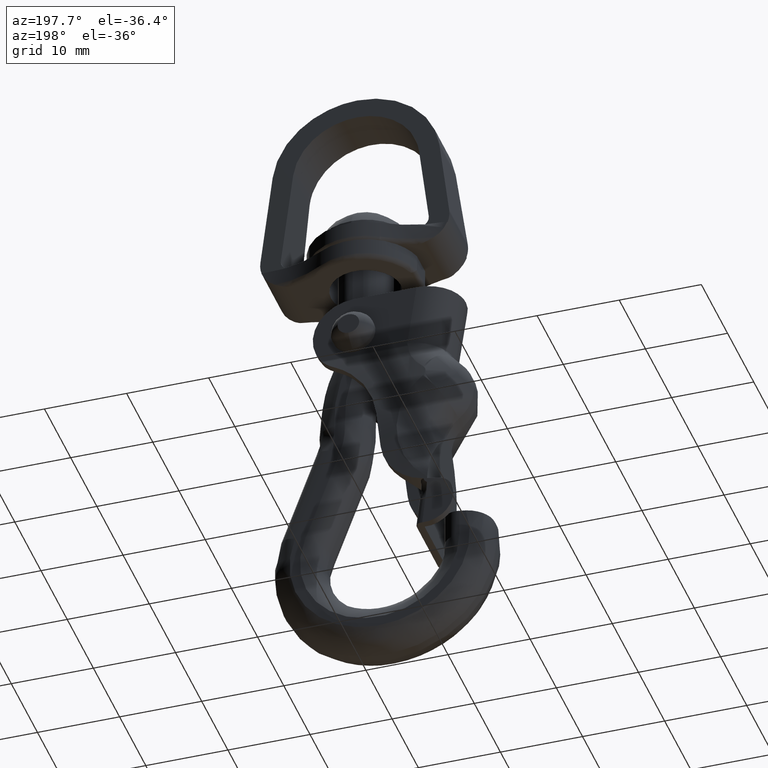
[diagram: clean part render]
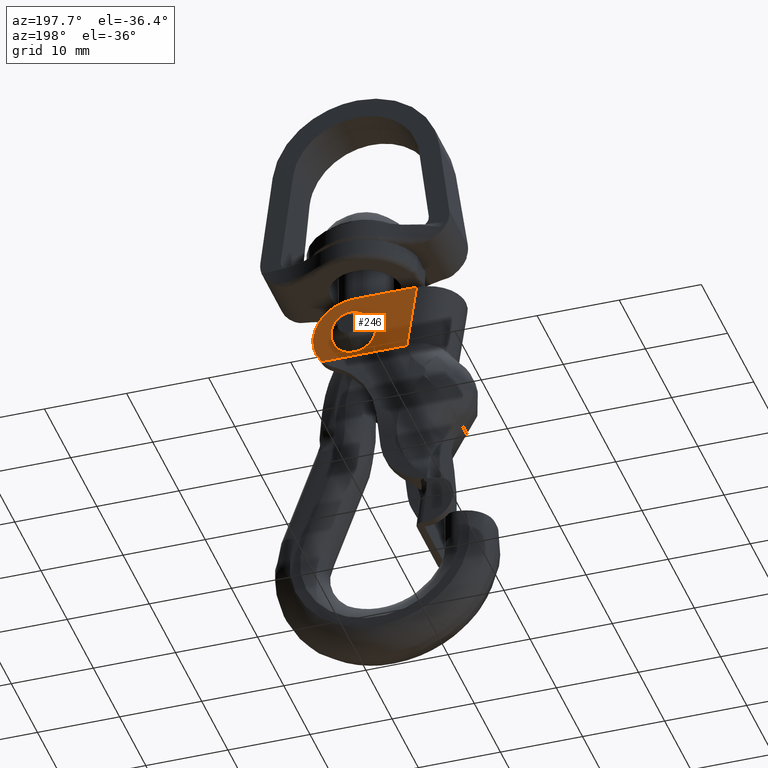
[diagram: same view with one face highlighted and labeled with its STEP entity id]
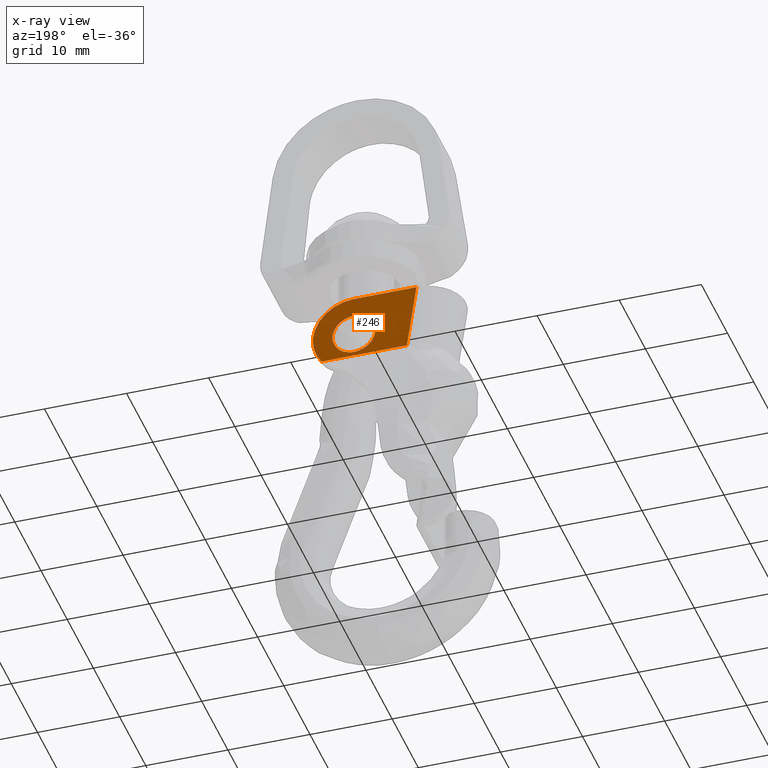
[diagram: x-ray of the same camera — body ghosted, the highlighted face saturated]
A machine part, auxiliary view. The second image highlights one B-rep face of the part: STEP entity #246.
The next image is the same camera in x-ray: the body ghosted, the highlighted face saturated — about 0% of this face is hidden behind the body in this view.
In plain terms, the highlighted planar face has unit normal (0, -1, -0).
Its self-contained STEP definition (entity closure, byte-faithful):
#246=ADVANCED_FACE('',(#1286,#1287),#1285,.F.);
#1285=PLANE('',#3165);
#1286=FACE_OUTER_BOUND('',#3166,.T.);
#1287=FACE_BOUND('',#3167,.T.);
#3162=CARTESIAN_POINT('',(-8.96663627536E+00,4.57698412698E+00,5.82882134567E+00));
#3163=DIRECTION('',(0.00000000000E+00,-1.00000000000E+00,-2.28647147580E-13));
#3164=DIRECTION('',(0.00000000000E+00,2.28647147580E-13,-1.00000000000E+00));
#3165=AXIS2_PLACEMENT_3D('',#3162,#3163,#3164);
#3166=EDGE_LOOP('',(#4503,#4504,#4505,#4506,#4507,#4508));
#3167=EDGE_LOOP('',(#4509,#4510));
#4503=ORIENTED_EDGE('',*,*,#5122,.T.);
#4504=ORIENTED_EDGE('',*,*,#5111,.T.);
#4505=ORIENTED_EDGE('',*,*,#5107,.T.);
#4506=ORIENTED_EDGE('',*,*,#5123,.T.);
#4507=ORIENTED_EDGE('',*,*,#5124,.T.);
#4508=ORIENTED_EDGE('',*,*,#5125,.F.);
#4509=ORIENTED_EDGE('',*,*,#5126,.F.);
#4510=ORIENTED_EDGE('',*,*,#5127,.F.);
#5107=EDGE_CURVE('',#7064,#7065,#7066,.T.);
#5111=EDGE_CURVE('',#7092,#7064,#7093,.T.);
#5122=EDGE_CURVE('',#7166,#7092,#7167,.T.);
#5123=EDGE_CURVE('',#7065,#7173,#7174,.T.);
#5124=EDGE_CURVE('',#7173,#7180,#7181,.T.);
#5125=EDGE_CURVE('',#7166,#7180,#7187,.T.);
#5126=EDGE_CURVE('',#7193,#7194,#7195,.T.);
#5127=EDGE_CURVE('',#7194,#7193,#7201,.T.);
#7064=VERTEX_POINT('',#9520);
#7065=VERTEX_POINT('',#9521);
#7066=CIRCLE('',#9525,5.37777777778E+00);
#7092=VERTEX_POINT('',#9546);
#7093=(BOUNDED_CURVE() B_SPLINE_CURVE(1,(#9547,#9548),.UNSPECIFIED.,.F.,.F.) B_SPLINE_CURVE_WITH_KNOTS((2,2),(0.00000000000E+00,1.00000000000E+00),.UNSPECIFIED.) CURVE() GEOMETRIC_REPRESENTATION_ITEM() RATIONAL_B_SPLINE_CURVE((1.00000000000E+00,1.00000000000E+00)) REPRESENTATION_ITEM('') );
#7166=VERTEX_POINT('',#9626);
#7167=LINE('',#9627,#9628);
#7173=VERTEX_POINT('',#9630);
#7174=LINE('',#9631,#9632);
#7180=VERTEX_POINT('',#9634);
#7181=LINE('',#9635,#9636);
#7187=CIRCLE('',#9641,5.01587301587E+00);
#7193=VERTEX_POINT('',#9642);
#7194=VERTEX_POINT('',#9643);
#7195=CIRCLE('',#9647,2.61460650396E+00);
#7201=CIRCLE('',#9651,2.61460650396E+00);
#9520=CARTESIAN_POINT('',(-6.49640530210E+00,4.57698412699E+00,-2.78347338610E+00));
#9521=CARTESIAN_POINT('',(-6.53374200625E+00,4.57698412699E+00,-2.45500995470E+00));
#9522=CARTESIAN_POINT('',(-1.18559167831E+01,4.57698412699E+00,-3.22633963250E+00));
#9523=DIRECTION('',(0.00000000000E+00,-1.00000000000E+00,-2.28647147580E-13));
#9524=DIRECTION('',(-0.00000000000E+00,-2.28647147580E-13,1.00000000000E+00));
#9525=AXIS2_PLACEMENT_3D('',#9522,#9523,#9524);
#9546=CARTESIAN_POINT('',(-6.47932065537E+00,4.57698412699E+00,-3.11361028209E+00));
#9547=CARTESIAN_POINT('',(-6.47932065537E+00,4.57698412699E+00,-3.11361028209E+00));
#9548=CARTESIAN_POINT('',(-6.49640530210E+00,4.57698412699E+00,-2.78347338610E+00));
#9626=CARTESIAN_POINT('',(3.93248180194E+00,4.57698412699E+00,-3.11361028209E+00));
#9627=CARTESIAN_POINT('',(3.93248180194E+00,4.57698412699E+00,-3.11361028209E+00));
#9628=VECTOR('',#9629,1.04118024573E+01);
#9629=DIRECTION('',(-1.00000000000E+00,0.00000000000E+00,0.00000000000E+00));
#9630=CARTESIAN_POINT('',(-7.61647866865E+00,4.57698412698E+00,5.01587301587E+00));
#9631=CARTESIAN_POINT('',(-6.53374200625E+00,4.57698412699E+00,-2.45500995470E+00));
#9632=VECTOR('',#9633,7.54893443077E+00);
#9633=DIRECTION('',(-1.43429072319E-01,-2.26252740270E-13,9.89660599000E-01));
#9634=CARTESIAN_POINT('',(8.84708972748E-14,4.57698412698E+00,5.01587301587E+00));
#9635=CARTESIAN_POINT('',(-7.61647866865E+00,4.57698412698E+00,5.01587301587E+00));
#9636=VECTOR('',#9637,7.61647866865E+00);
#9637=DIRECTION('',(1.00000000000E+00,0.00000000000E+00,-2.40222237097E-14));
#9638=CARTESIAN_POINT('',(-2.84217094304E-14,4.57698412699E+00,-1.13686837722E-13));
#9639=DIRECTION('',(0.00000000000E+00,-1.00000000000E+00,-2.28647147580E-13));
#9640=DIRECTION('',(-0.00000000000E+00,-2.28647147580E-13,1.00000000000E+00));
#9641=AXIS2_PLACEMENT_3D('',#9638,#9639,#9640);
#9642=CARTESIAN_POINT('',(2.96059473233E-16,4.57698412698E+00,2.61460650396E+00));
#9643=CARTESIAN_POINT('',(0.00000000000E+00,4.57698412699E+00,-2.61460650396E+00));
#9644=CARTESIAN_POINT('',(0.00000000000E+00,4.57698412699E+00,-7.16790661064E-14));
#9645=DIRECTION('',(0.00000000000E+00,1.00000000000E+00,2.28647147580E-13));
#9646=DIRECTION('',(-1.22460635382E-16,2.28647147580E-13,-1.00000000000E+00));
#9647=AXIS2_PLACEMENT_3D('',#9644,#9645,#9646);
#9648=CARTESIAN_POINT('',(0.00000000000E+00,4.57698412699E+00,-7.16790661064E-14));
#9649=DIRECTION('',(0.00000000000E+00,1.00000000000E+00,2.28647147580E-13));
#9650=DIRECTION('',(-1.22460635382E-16,2.28647147580E-13,-1.00000000000E+00));
#9651=AXIS2_PLACEMENT_3D('',#9648,#9649,#9650);